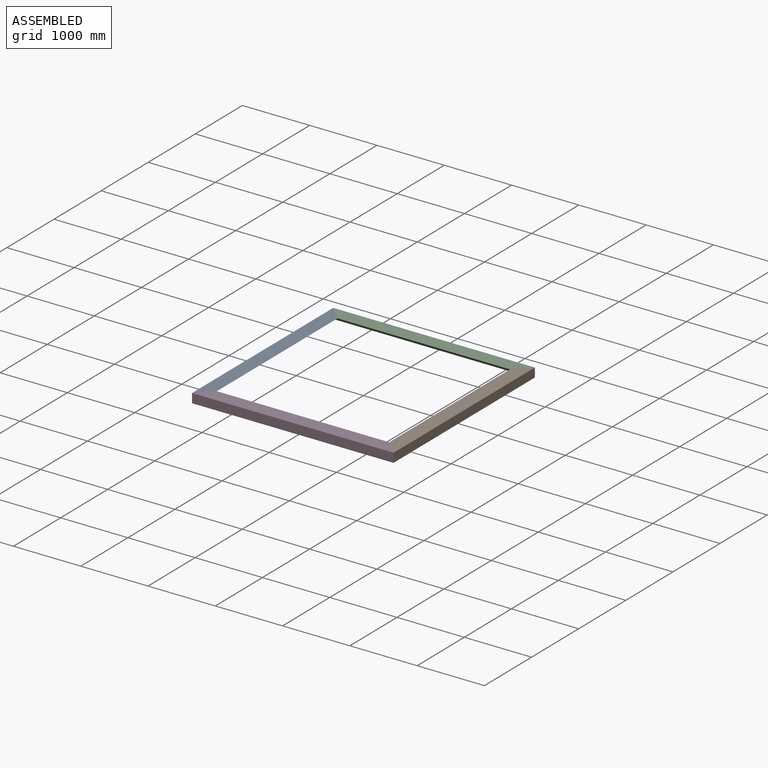
[diagram: assembled view]
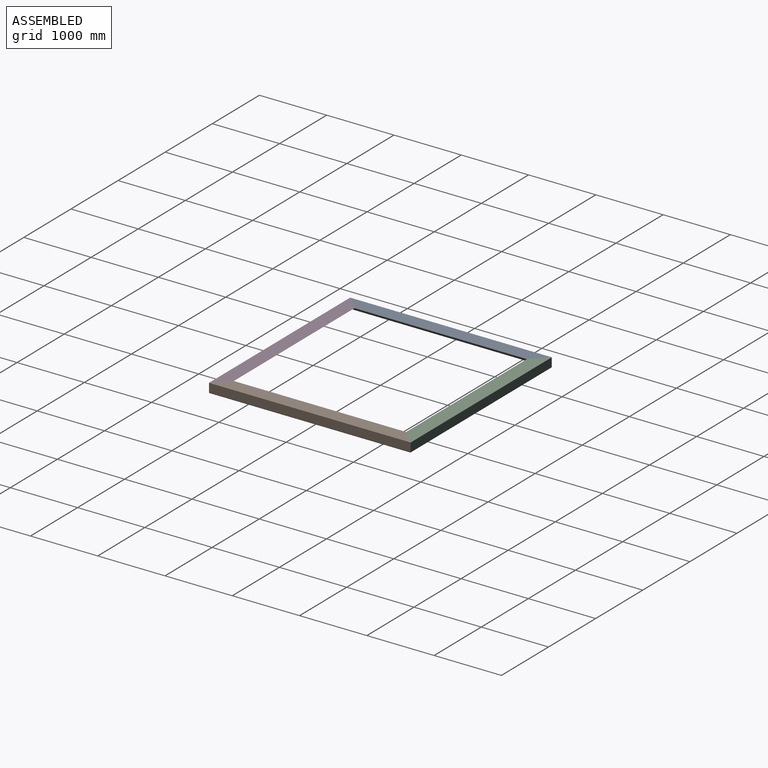
[diagram: assembled view, second angle]
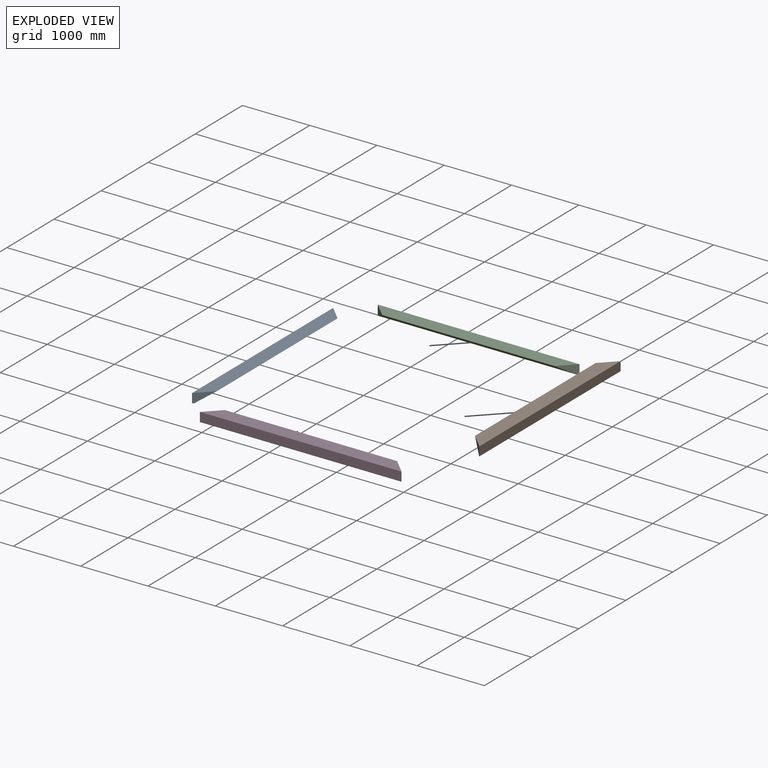
[diagram: exploded view]
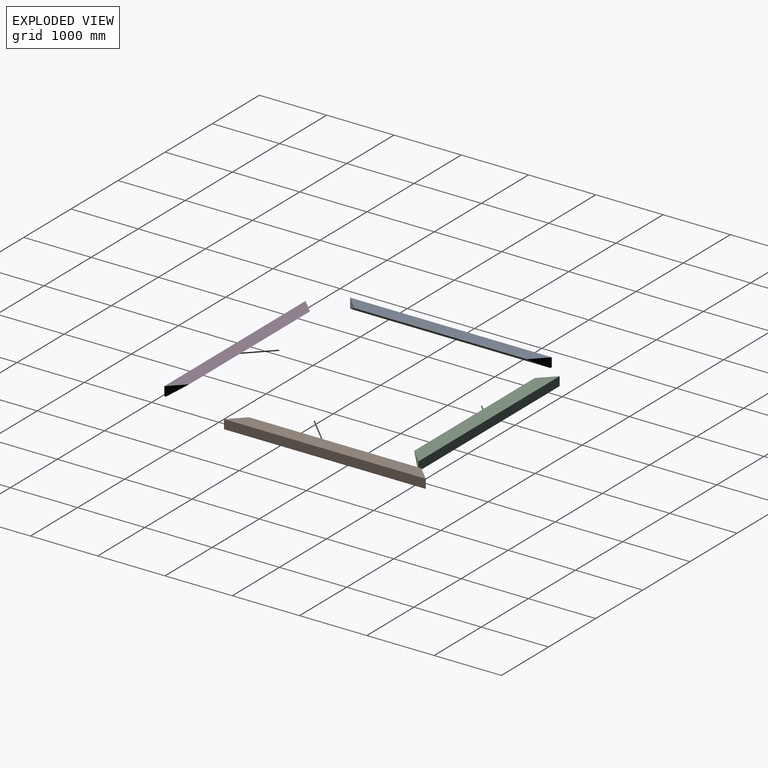
[diagram: exploded view, second angle]
ASSEMBLY  parts=4 mates=3
PART A: 6 faces, bbox 2997.2x217.6x140.7 mm
  f0: plane 2997.2x217.65mm, normal (0,0,1), area 604968.4mm2, adj f1,f2,f3,f4
  f1: plane 2957.23x197.67mm, normal (0,0.57,-0.82), area 665896.5mm2, adj f0,f3,f4,f5
  f2: plane 2997.2x128mm, normal (0,-1,0), area 383652.2mm2, adj f0,f3,f4,f5
  f3: plane 217.65x217.65mm, normal (-0.71,0.71,0), area 23265.3mm2, adj f0,f1,f2,f5
  f4: plane 217.65x217.65mm, normal (0.71,0.71,0), area 23265.3mm2, adj f0,f1,f2,f5
  f5: cylinder r=12.7mm len=2997.2mm, axis (-1,0,0), area 82604.2mm2, adj f1,f2,f3,f4
PART B: same geometry as A
PART C: same geometry as A
PART D: same geometry as A
PLACE A rot(axis=(0,0,-1),90deg) t=(0,0,0)mm
PLACE B rot(axis=(0,0,1),90deg) t=(0,0,0)mm
PLACE C rot(axis=(0,0,-1),180deg) t=(0,0,0)mm
PLACE D at identity fixed
MATE fastened A.f4 <-> D.f3  axis (0.71,-0.71,0) through (-1425.5,-1425.5,2972.55)mm
MATE fastened D.f4 <-> B.f3  axis (0.71,0.71,0) through (1425.5,-1425.5,2972.55)mm
MATE fastened C.f4 <-> A.f3  axis (-0.71,-0.71,0) through (-1425.5,1425.5,2972.55)mm
